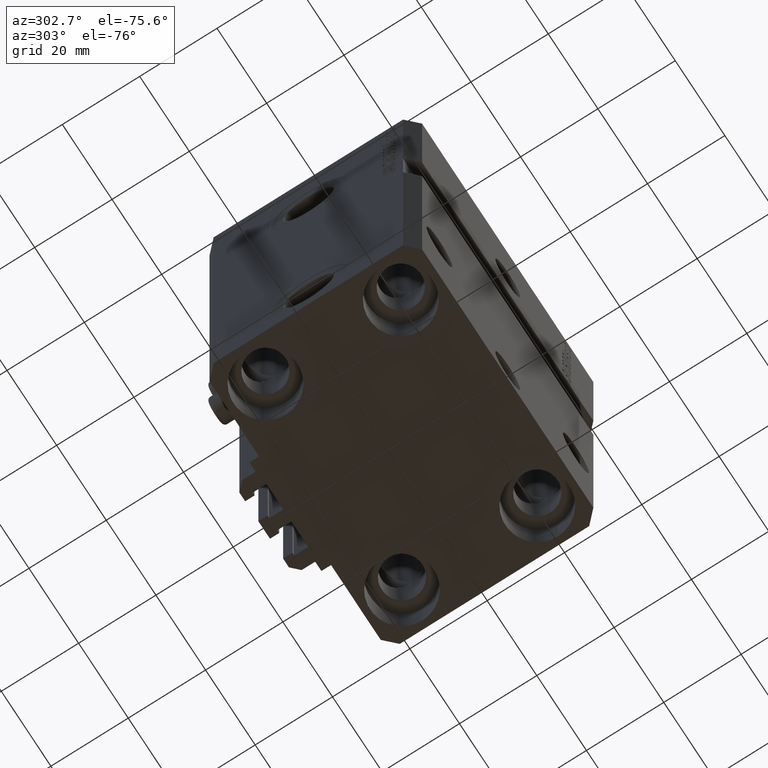
[diagram: clean part render]
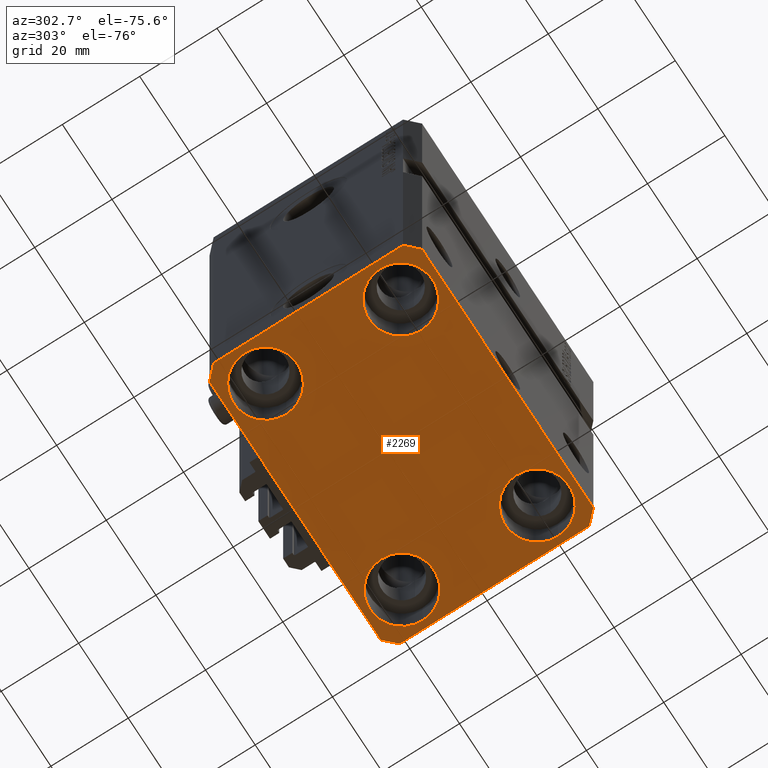
[diagram: same view with one face highlighted and labeled with its STEP entity id]
A machine part, auxiliary view. The second image highlights one B-rep face of the part: STEP entity #2269.
In plain terms, the highlighted planar face has unit normal (0, 0, 1).
Its self-contained STEP definition (entity closure, byte-faithful):
#58 = CARTESIAN_POINT ( 'NONE',  ( -35.75000000000000711, -17.50000000000000000, -110.0000000000000000 ) ) ;
#219 = CARTESIAN_POINT ( 'NONE',  ( -19.25000000000000355, -17.50000000000000000, -110.0000000000000000 ) ) ;
#510 = ORIENTED_EDGE ( 'NONE', *, *, #43047, .T. ) ;
#2052 = LINE ( 'NONE', #16819, #4936 ) ;
#2100 = ORIENTED_EDGE ( 'NONE', *, *, #9492, .F. ) ;
#2158 = FACE_OUTER_BOUND ( 'NONE', #43814, .T. ) ;
#2269 = ADVANCED_FACE ( 'NONE', ( #38736, #42840, #28301, #12817, #2158 ), #16927, .F. ) ;
#2455 = VERTEX_POINT ( 'NONE', #30382 ) ;
#2494 = CARTESIAN_POINT ( 'NONE',  ( 34.49999999999999289, -27.49999999999999645, -110.0000000000000000 ) ) ;
#2558 = DIRECTION ( 'NONE',  ( 0.000000000000000000, -1.000000000000000000, 0.000000000000000000 ) ) ;
#3081 = CARTESIAN_POINT ( 'NONE',  ( -34.49999999999999289, 27.50000000000000000, -110.0000000000000000 ) ) ;
#3295 = ORIENTED_EDGE ( 'NONE', *, *, #29355, .F. ) ;
#3375 = LINE ( 'NONE', #25651, #31279 ) ;
#3529 = AXIS2_PLACEMENT_3D ( 'NONE', #16448, #43079, #46463 ) ;
#4138 = CARTESIAN_POINT ( 'NONE',  ( 35.74999999999999289, 17.50000000000001066, -110.0000000000000000 ) ) ;
#4277 = ORIENTED_EDGE ( 'NONE', *, *, #46963, .T. ) ;
#4545 = EDGE_CURVE ( 'NONE', #16616, #40192, #12891, .T. ) ;
#4747 = VERTEX_POINT ( 'NONE', #30000 ) ;
#4823 = LINE ( 'NONE', #8237, #46338 ) ;
#4911 = CARTESIAN_POINT ( 'NONE',  ( -27.50000000000000355, 17.50000000000000000, -110.0000000000000000 ) ) ;
#4936 = VECTOR ( 'NONE', #27946, 1000.000000000000000 ) ;
#5094 = DIRECTION ( 'NONE',  ( 1.000000000000000000, 0.000000000000000000, 0.000000000000000000 ) ) ;
#5388 = ORIENTED_EDGE ( 'NONE', *, *, #19720, .T. ) ;
#5833 = CARTESIAN_POINT ( 'NONE',  ( -27.50000000000000355, -17.50000000000000000, -110.0000000000000000 ) ) ;
#6182 = CARTESIAN_POINT ( 'NONE',  ( 27.50000000000000355, -17.50000000000000000, -110.0000000000000000 ) ) ;
#6274 = EDGE_CURVE ( 'NONE', #17967, #34998, #32281, .T. ) ;
#6728 = DIRECTION ( 'NONE',  ( -0.7071067811865471286, -0.7071067811865479058, 0.000000000000000000 ) ) ;
#7363 = CIRCLE ( 'NONE', #38304, 8.249999999999992895 ) ;
#7422 = LINE ( 'NONE', #43489, #15086 ) ;
#7924 = CARTESIAN_POINT ( 'NONE',  ( -19.25000000000000355, 17.50000000000000000, -110.0000000000000000 ) ) ;
#8237 = CARTESIAN_POINT ( 'NONE',  ( 37.49999999999999289, -24.50000000000000000, -110.0000000000000000 ) ) ;
#8494 = DIRECTION ( 'NONE',  ( -0.000000000000000000, -0.000000000000000000, 1.000000000000000000 ) ) ;
#9102 = DIRECTION ( 'NONE',  ( 1.000000000000000000, 0.000000000000000000, 0.000000000000000000 ) ) ;
#9339 = EDGE_LOOP ( 'NONE', ( #510, #34096 ) ) ;
#9492 = EDGE_CURVE ( 'NONE', #34998, #19406, #4823, .T. ) ;
#9954 = EDGE_CURVE ( 'NONE', #35285, #2455, #36713, .T. ) ;
#10083 = CARTESIAN_POINT ( 'NONE',  ( 37.50000000000051870, 24.49999999999995381, -110.0000000000000000 ) ) ;
#10318 = LINE ( 'NONE', #10083, #44846 ) ;
#10724 = EDGE_CURVE ( 'NONE', #19406, #38631, #10318, .T. ) ;
#10916 = CARTESIAN_POINT ( 'NONE',  ( 27.50000000000000355, -17.50000000000000000, -110.0000000000000000 ) ) ;
#10975 = CARTESIAN_POINT ( 'NONE',  ( 35.75000000000000711, -17.50000000000000000, -110.0000000000000000 ) ) ;
#11623 = DIRECTION ( 'NONE',  ( 1.076236605503979380E-14, 1.000000000000000000, 0.000000000000000000 ) ) ;
#12817 = FACE_BOUND ( 'NONE', #42601, .T. ) ;
#12891 = CIRCLE ( 'NONE', #45352, 8.250000000000000000 ) ;
#13673 = CARTESIAN_POINT ( 'NONE',  ( 34.49999999999999289, -27.49999999999999645, -110.0000000000000000 ) ) ;
#14257 = VERTEX_POINT ( 'NONE', #4138 ) ;
#14344 = AXIS2_PLACEMENT_3D ( 'NONE', #21967, #32394, #25132 ) ;
#14671 = VECTOR ( 'NONE', #2558, 1000.000000000000000 ) ;
#15086 = VECTOR ( 'NONE', #47124, 1000.000000000000000 ) ;
#16129 = EDGE_LOOP ( 'NONE', ( #35528, #27071 ) ) ;
#16390 = AXIS2_PLACEMENT_3D ( 'NONE', #4911, #19683, #35434 ) ;
#16448 = CARTESIAN_POINT ( 'NONE',  ( 0.000000000000000000, 0.000000000000000000, -110.0000000000000000 ) ) ;
#16616 = VERTEX_POINT ( 'NONE', #219 ) ;
#16620 = AXIS2_PLACEMENT_3D ( 'NONE', #6182, #31836, #9102 ) ;
#16819 = CARTESIAN_POINT ( 'NONE',  ( -34.49999999999998579, -27.49999999999999645, -110.0000000000000000 ) ) ;
#16927 = PLANE ( 'NONE',  #3529 ) ;
#17362 = EDGE_CURVE ( 'NONE', #22584, #14257, #22507, .T. ) ;
#17929 = DIRECTION ( 'NONE',  ( 1.000000000000000000, 0.000000000000000000, 0.000000000000000000 ) ) ;
#17967 = VERTEX_POINT ( 'NONE', #13673 ) ;
#18529 = EDGE_CURVE ( 'NONE', #4747, #35285, #29225, .T. ) ;
#18638 = DIRECTION ( 'NONE',  ( -0.000000000000000000, -0.000000000000000000, 1.000000000000000000 ) ) ;
#18902 = ORIENTED_EDGE ( 'NONE', *, *, #27513, .F. ) ;
#19316 = ORIENTED_EDGE ( 'NONE', *, *, #40096, .T. ) ;
#19406 = VERTEX_POINT ( 'NONE', #26612 ) ;
#19683 = DIRECTION ( 'NONE',  ( -0.000000000000000000, -0.000000000000000000, 1.000000000000000000 ) ) ;
#19720 = EDGE_CURVE ( 'NONE', #24861, #47037, #24140, .T. ) ;
#19963 = CARTESIAN_POINT ( 'NONE',  ( 27.49999999999999645, 17.50000000000001066, -110.0000000000000000 ) ) ;
#20342 = DIRECTION ( 'NONE',  ( -0.000000000000000000, -0.000000000000000000, 1.000000000000000000 ) ) ;
#21819 = VERTEX_POINT ( 'NONE', #33773 ) ;
#21967 = CARTESIAN_POINT ( 'NONE',  ( -27.50000000000000355, -17.50000000000000000, -110.0000000000000000 ) ) ;
#22007 = ORIENTED_EDGE ( 'NONE', *, *, #9954, .F. ) ;
#22451 = DIRECTION ( 'NONE',  ( -0.000000000000000000, -0.000000000000000000, 1.000000000000000000 ) ) ;
#22507 = CIRCLE ( 'NONE', #31768, 8.249999999999992895 ) ;
#22584 = VERTEX_POINT ( 'NONE', #47466 ) ;
#23466 = VECTOR ( 'NONE', #24308, 1000.000000000000114 ) ;
#23678 = ORIENTED_EDGE ( 'NONE', *, *, #10724, .F. ) ;
#24140 = CIRCLE ( 'NONE', #16390, 8.250000000000000000 ) ;
#24308 = DIRECTION ( 'NONE',  ( 0.7071067811865474617, 0.7071067811865474617, 0.000000000000000000 ) ) ;
#24861 = VERTEX_POINT ( 'NONE', #28495 ) ;
#25132 = DIRECTION ( 'NONE',  ( 1.000000000000000000, 0.000000000000000000, 0.000000000000000000 ) ) ;
#25222 = AXIS2_PLACEMENT_3D ( 'NONE', #44493, #22451, #25853 ) ;
#25419 = VERTEX_POINT ( 'NONE', #35275 ) ;
#25651 = CARTESIAN_POINT ( 'NONE',  ( 34.50000000000056843, 27.50000000000000000, -110.0000000000000000 ) ) ;
#25813 = DIRECTION ( 'NONE',  ( -0.7071067811865356934, 0.7071067811865594521, 0.000000000000000000 ) ) ;
#25853 = DIRECTION ( 'NONE',  ( 1.000000000000000000, 0.000000000000000000, 0.000000000000000000 ) ) ;
#26612 = CARTESIAN_POINT ( 'NONE',  ( 37.50000000000051870, 24.49999999999995381, -110.0000000000000000 ) ) ;
#26924 = EDGE_CURVE ( 'NONE', #33227, #21819, #34328, .T. ) ;
#26993 = DIRECTION ( 'NONE',  ( -0.000000000000000000, -0.000000000000000000, 1.000000000000000000 ) ) ;
#27071 = ORIENTED_EDGE ( 'NONE', *, *, #4545, .T. ) ;
#27513 = EDGE_CURVE ( 'NONE', #25419, #17967, #2052, .T. ) ;
#27624 = ORIENTED_EDGE ( 'NONE', *, *, #18529, .F. ) ;
#27946 = DIRECTION ( 'NONE',  ( 1.000000000000000000, 0.000000000000000000, 0.000000000000000000 ) ) ;
#28301 = FACE_BOUND ( 'NONE', #37435, .T. ) ;
#28495 = CARTESIAN_POINT ( 'NONE',  ( -35.75000000000000711, 17.50000000000000000, -110.0000000000000000 ) ) ;
#29225 = LINE ( 'NONE', #3081, #39552 ) ;
#29355 = EDGE_CURVE ( 'NONE', #38631, #4747, #3375, .T. ) ;
#30000 = CARTESIAN_POINT ( 'NONE',  ( -34.49999999999999289, 27.50000000000000000, -110.0000000000000000 ) ) ;
#30382 = CARTESIAN_POINT ( 'NONE',  ( -37.49999999999999289, -24.50000000000000000, -110.0000000000000000 ) ) ;
#30390 = ORIENTED_EDGE ( 'NONE', *, *, #17362, .T. ) ;
#30728 = EDGE_CURVE ( 'NONE', #40192, #16616, #44488, .T. ) ;
#31279 = VECTOR ( 'NONE', #36564, 1000.000000000000000 ) ;
#31768 = AXIS2_PLACEMENT_3D ( 'NONE', #45298, #8494, #5094 ) ;
#31836 = DIRECTION ( 'NONE',  ( -0.000000000000000000, -0.000000000000000000, 1.000000000000000000 ) ) ;
#31886 = CARTESIAN_POINT ( 'NONE',  ( -37.49999999999999289, 24.50000000000000000, -110.0000000000000000 ) ) ;
#32281 = LINE ( 'NONE', #2494, #23466 ) ;
#32394 = DIRECTION ( 'NONE',  ( -0.000000000000000000, -0.000000000000000000, 1.000000000000000000 ) ) ;
#32964 = CIRCLE ( 'NONE', #25222, 8.250000000000000000 ) ;
#33227 = VERTEX_POINT ( 'NONE', #10975 ) ;
#33773 = CARTESIAN_POINT ( 'NONE',  ( 19.25000000000000000, -17.50000000000000000, -110.0000000000000000 ) ) ;
#34096 = ORIENTED_EDGE ( 'NONE', *, *, #26924, .T. ) ;
#34328 = CIRCLE ( 'NONE', #38175, 8.250000000000000000 ) ;
#34998 = VERTEX_POINT ( 'NONE', #44760 ) ;
#35275 = CARTESIAN_POINT ( 'NONE',  ( -34.49999999999998579, -27.49999999999999645, -110.0000000000000000 ) ) ;
#35285 = VERTEX_POINT ( 'NONE', #31886 ) ;
#35434 = DIRECTION ( 'NONE',  ( 1.000000000000000000, 0.000000000000000000, 0.000000000000000000 ) ) ;
#35528 = ORIENTED_EDGE ( 'NONE', *, *, #30728, .T. ) ;
#36564 = DIRECTION ( 'NONE',  ( -1.000000000000000000, 0.000000000000000000, 0.000000000000000000 ) ) ;
#36713 = LINE ( 'NONE', #39856, #14671 ) ;
#37435 = EDGE_LOOP ( 'NONE', ( #30390, #19316 ) ) ;
#38048 = DIRECTION ( 'NONE',  ( 1.000000000000000000, 0.000000000000000000, 0.000000000000000000 ) ) ;
#38175 = AXIS2_PLACEMENT_3D ( 'NONE', #10916, #18638, #17929 ) ;
#38304 = AXIS2_PLACEMENT_3D ( 'NONE', #19963, #26993, #45878 ) ;
#38428 = ORIENTED_EDGE ( 'NONE', *, *, #40799, .F. ) ;
#38631 = VERTEX_POINT ( 'NONE', #40210 ) ;
#38736 = FACE_BOUND ( 'NONE', #16129, .T. ) ;
#39284 = ORIENTED_EDGE ( 'NONE', *, *, #6274, .F. ) ;
#39552 = VECTOR ( 'NONE', #6728, 1000.000000000000000 ) ;
#39856 = CARTESIAN_POINT ( 'NONE',  ( -37.49999999999999289, 24.50000000000000000, -110.0000000000000000 ) ) ;
#40096 = EDGE_CURVE ( 'NONE', #14257, #22584, #7363, .T. ) ;
#40192 = VERTEX_POINT ( 'NONE', #58 ) ;
#40210 = CARTESIAN_POINT ( 'NONE',  ( 34.50000000000056843, 27.50000000000000000, -110.0000000000000000 ) ) ;
#40799 = EDGE_CURVE ( 'NONE', #2455, #25419, #7422, .T. ) ;
#41482 = CIRCLE ( 'NONE', #16620, 8.250000000000000000 ) ;
#42601 = EDGE_LOOP ( 'NONE', ( #5388, #4277 ) ) ;
#42840 = FACE_BOUND ( 'NONE', #9339, .T. ) ;
#43047 = EDGE_CURVE ( 'NONE', #21819, #33227, #41482, .T. ) ;
#43079 = DIRECTION ( 'NONE',  ( 0.000000000000000000, 0.000000000000000000, 1.000000000000000000 ) ) ;
#43489 = CARTESIAN_POINT ( 'NONE',  ( -37.49999999999999289, -24.50000000000000000, -110.0000000000000000 ) ) ;
#43814 = EDGE_LOOP ( 'NONE', ( #3295, #23678, #2100, #39284, #18902, #38428, #22007, #27624 ) ) ;
#44488 = CIRCLE ( 'NONE', #14344, 8.250000000000000000 ) ;
#44493 = CARTESIAN_POINT ( 'NONE',  ( -27.50000000000000355, 17.50000000000000000, -110.0000000000000000 ) ) ;
#44760 = CARTESIAN_POINT ( 'NONE',  ( 37.49999999999999289, -24.50000000000000000, -110.0000000000000000 ) ) ;
#44846 = VECTOR ( 'NONE', #25813, 1000.000000000000114 ) ;
#45298 = CARTESIAN_POINT ( 'NONE',  ( 27.49999999999999645, 17.50000000000001066, -110.0000000000000000 ) ) ;
#45352 = AXIS2_PLACEMENT_3D ( 'NONE', #5833, #20342, #38048 ) ;
#45878 = DIRECTION ( 'NONE',  ( 1.000000000000000000, 0.000000000000000000, 0.000000000000000000 ) ) ;
#46338 = VECTOR ( 'NONE', #11623, 1000.000000000000000 ) ;
#46463 = DIRECTION ( 'NONE',  ( 1.000000000000000000, 0.000000000000000000, -0.000000000000000000 ) ) ;
#46963 = EDGE_CURVE ( 'NONE', #47037, #24861, #32964, .T. ) ;
#47037 = VERTEX_POINT ( 'NONE', #7924 ) ;
#47124 = DIRECTION ( 'NONE',  ( 0.7071067811865483499, -0.7071067811865466846, 0.000000000000000000 ) ) ;
#47466 = CARTESIAN_POINT ( 'NONE',  ( 19.25000000000000000, 17.50000000000001066, -110.0000000000000000 ) ) ;